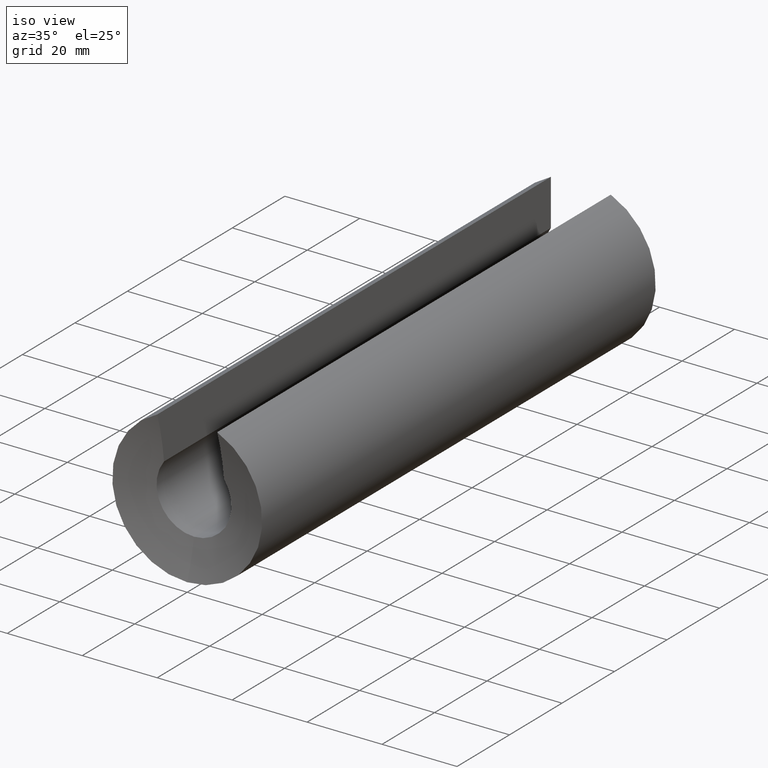
[diagram: clean part render]
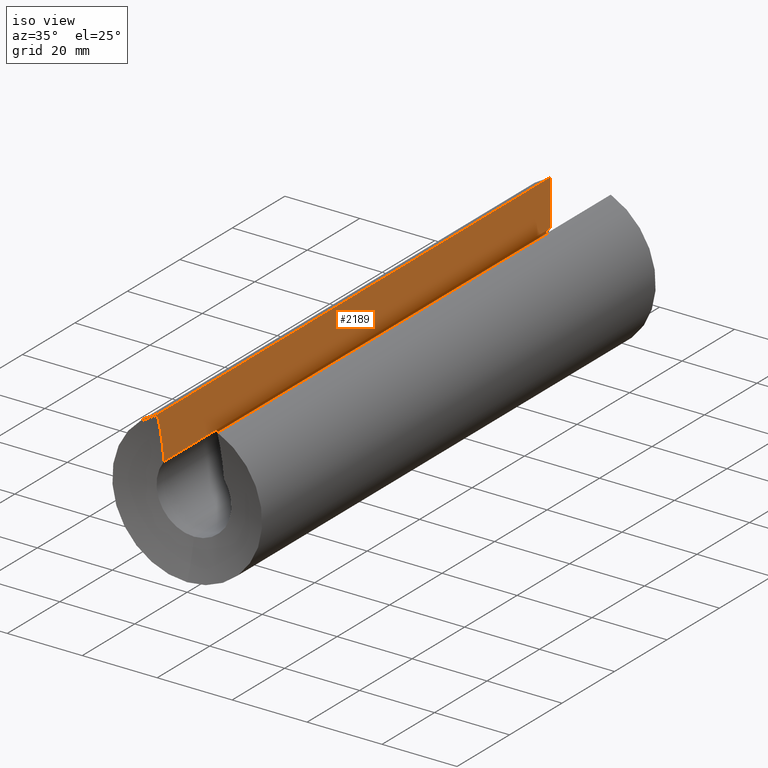
[diagram: same view with one face highlighted and labeled with its STEP entity id]
A machine part, iso view. The second image highlights one B-rep face of the part: STEP entity #2189.
In plain terms, the highlighted planar face has unit normal (-1, 0, 0).
Its self-contained STEP definition (entity closure, byte-faithful):
#13 = ORIENTED_EDGE ( 'NONE', *, *, #3915, .F. ) ;
#177 = VERTEX_POINT ( 'NONE', #7245 ) ;
#337 = VERTEX_POINT ( 'NONE', #9958 ) ;
#878 = EDGE_LOOP ( 'NONE', ( #7231, #2104, #13, #9206 ) ) ;
#1322 = VERTEX_POINT ( 'NONE', #5779 ) ;
#1381 = CIRCLE ( 'NONE', #3307, 59.46427498927402400 ) ;
#1451 = VERTEX_POINT ( 'NONE', #13178 ) ;
#1514 = EDGE_CURVE ( 'NONE', #1322, #1451, #10815, .T. ) ;
#1707 = DIRECTION ( 'NONE',  ( 0.0000000000000000000, 0.0000000000000000000, 1.000000000000000000 ) ) ;
#2104 = ORIENTED_EDGE ( 'NONE', *, *, #7903, .T. ) ;
#2189 = ADVANCED_FACE ( 'NONE', ( #10311 ), #11352, .F. ) ;
#3307 = AXIS2_PLACEMENT_3D ( 'NONE', #3726, #4779, #1707 ) ;
#3726 = CARTESIAN_POINT ( 'NONE',  ( -8.000000000000000000, -56.56854249492380400, -3.463824224941972900E-015 ) ) ;
#3850 = CARTESIAN_POINT ( 'NONE',  ( -8.000000000000000000, 150.0000000000000000, 6.000000000000000900 ) ) ;
#3915 = EDGE_CURVE ( 'NONE', #337, #177, #4515, .T. ) ;
#4323 = EDGE_CURVE ( 'NONE', #1322, #337, #4819, .T. ) ;
#4515 = LINE ( 'NONE', #9680, #10778 ) ;
#4779 = DIRECTION ( 'NONE',  ( -1.000000000000000000, 0.0000000000000000000, 0.0000000000000000000 ) ) ;
#4819 = LINE ( 'NONE', #3850, #8674 ) ;
#5206 = DIRECTION ( 'NONE',  ( 0.0000000000000000000, 0.0000000000000000000, 1.000000000000000000 ) ) ;
#5779 = CARTESIAN_POINT ( 'NONE',  ( -8.000000000000000000, 150.0000000000000000, 18.33030277982335600 ) ) ;
#6093 = DIRECTION ( 'NONE',  ( -1.000000000000000000, 0.0000000000000000000, 0.0000000000000000000 ) ) ;
#7231 = ORIENTED_EDGE ( 'NONE', *, *, #1514, .T. ) ;
#7245 = CARTESIAN_POINT ( 'NONE',  ( -8.000000000000001800, 2.592255336072366100, 5.999999999999997300 ) ) ;
#7565 = AXIS2_PLACEMENT_3D ( 'NONE', #11225, #6093, #5206 ) ;
#7903 = EDGE_CURVE ( 'NONE', #1451, #177, #1381, .T. ) ;
#8647 = DIRECTION ( 'NONE',  ( -0.0000000000000000000, -1.000000000000000000, -0.0000000000000000000 ) ) ;
#8674 = VECTOR ( 'NONE', #8905, 1000.000000000000000 ) ;
#8905 = DIRECTION ( 'NONE',  ( -0.0000000000000000000, -0.0000000000000000000, -1.000000000000000000 ) ) ;
#9206 = ORIENTED_EDGE ( 'NONE', *, *, #4323, .F. ) ;
#9680 = CARTESIAN_POINT ( 'NONE',  ( -8.000000000000001800, 150.0000000000000000, 5.999999999999997300 ) ) ;
#9958 = CARTESIAN_POINT ( 'NONE',  ( -8.000000000000001800, 150.0000000000000000, 5.999999999999997300 ) ) ;
#10058 = CARTESIAN_POINT ( 'NONE',  ( -8.000000000000000000, 150.0000000000000000, 18.33030277982335600 ) ) ;
#10311 = FACE_OUTER_BOUND ( 'NONE', #878, .T. ) ;
#10778 = VECTOR ( 'NONE', #8647, 1000.000000000000000 ) ;
#10815 = LINE ( 'NONE', #10058, #11292 ) ;
#11225 = CARTESIAN_POINT ( 'NONE',  ( -8.000000000000000000, 150.0000000000000000, 6.000000000000000900 ) ) ;
#11292 = VECTOR ( 'NONE', #12118, 1000.000000000000000 ) ;
#11352 = PLANE ( 'NONE',  #7565 ) ;
#12118 = DIRECTION ( 'NONE',  ( -0.0000000000000000000, -1.000000000000000000, -0.0000000000000000000 ) ) ;
#13178 = CARTESIAN_POINT ( 'NONE',  ( -8.000000000000000000, 0.0000000000000000000, 18.33030277982335600 ) ) ;